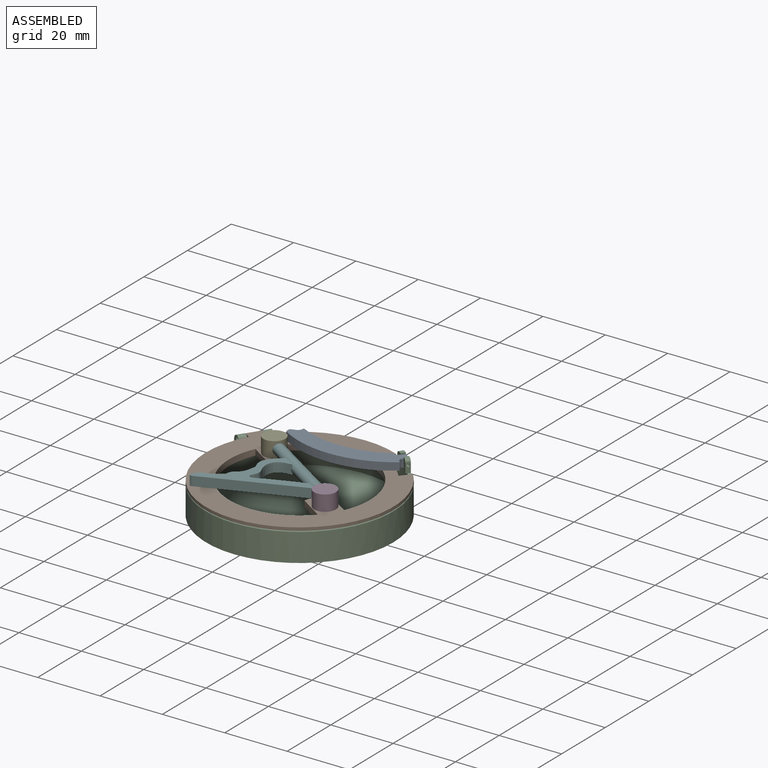
[diagram: assembled view]
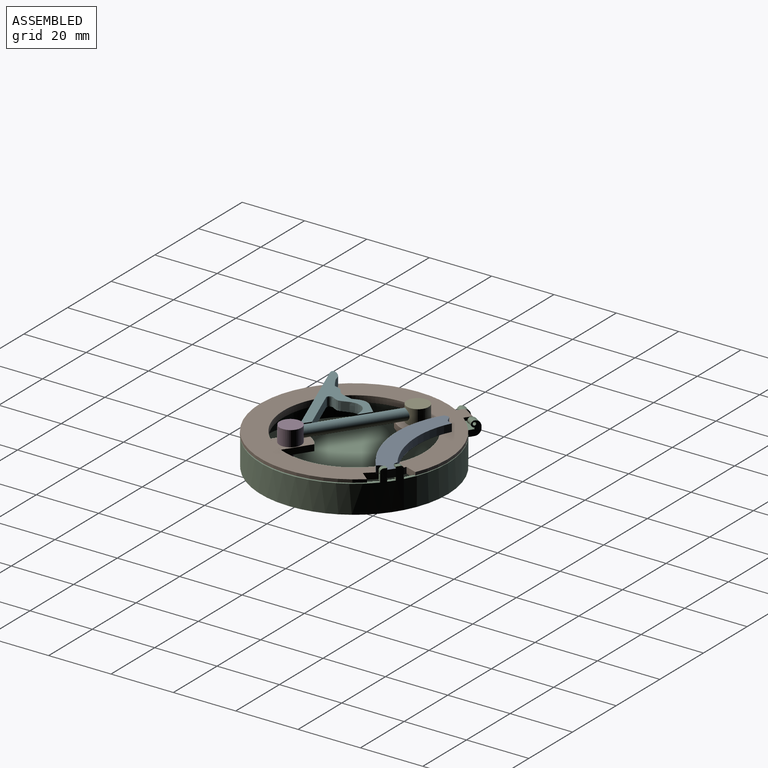
[diagram: assembled view, second angle]
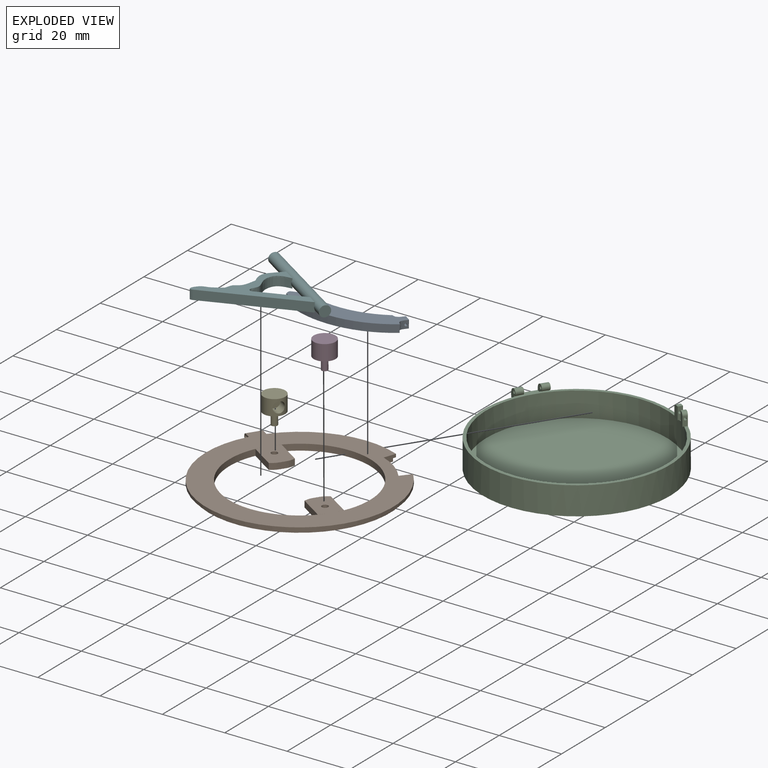
[diagram: exploded view]
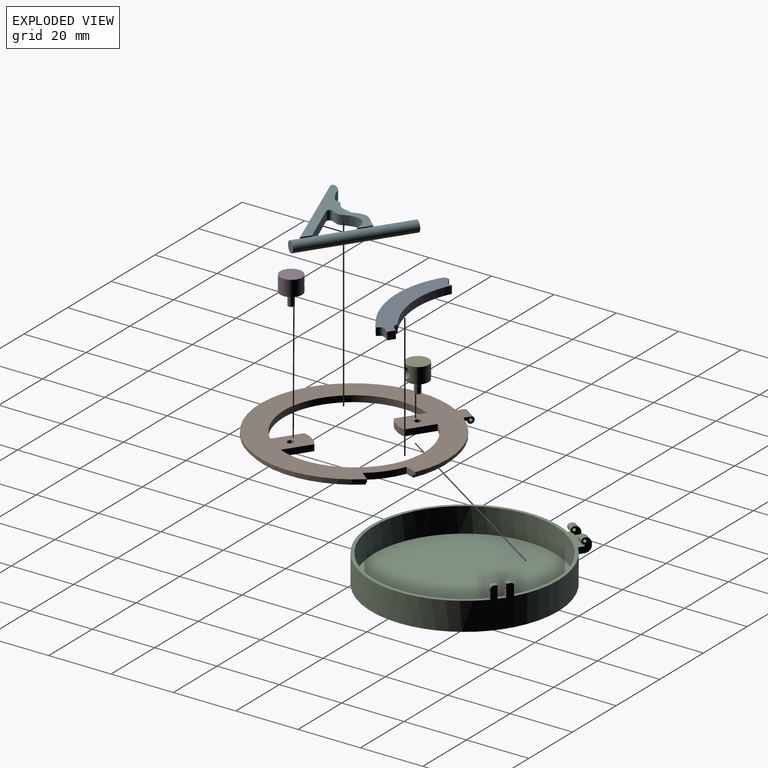
[diagram: exploded view, second angle]
ASSEMBLY  parts=6 mates=5
PART A: 11 faces, bbox 35.3x12.1x2.5 mm
  f0: extruded ~4.39x2.81mm, area 14.7mm2, adj f1,f7,f8,f9
  f1: cylinder r=29.41mm len=34.69mm, axis (0,0,-1), area 93mm2, adj f0,f2,f8,f9
  f2: extruded ~2.61x2.5mm, area 7.5mm2, adj f1,f3,f8,f9
  f3: plane 2.51x1.23mm, normal (0.81,-0.59,0), area 3.3mm2, adj f2,f4,f8,f9,f10
  f4: plane 2.5x1.95mm, normal (0.59,0.81,0), area 6mm2, adj f3,f5,f8,f9
  f5: plane 2.51x1.22mm, normal (-0.81,0.59,0), area 3.2mm2, adj f4,f6,f8,f9,f10
  f6: extruded ~2.5x2.27mm, area 6.4mm2, adj f5,f7,f8,f9
  f7: cylinder r=27.04mm len=27.29mm, axis (0,0,-1), area 71.6mm2, adj f0,f6,f8,f9
  f8: plane 35.26x12.13mm, normal (0,0,1), area 201.1mm2, adj f0,f1,f2,f3,f4,f5,f6,f7
  f9: plane 35.26x12.13mm, normal (0,0,-1), area 201.1mm2, adj f0,f1,f2,f3,f4,f5,f6,f7
  f10: cylinder r=0.4mm len=2.42mm, axis (-0.81,0.58,0), area 6mm2, adj f3,f5
PART B: 29 faces, bbox 60x60x2.1 mm
  f0: plane 2.68x2.1mm, normal (-0.55,-0.84,0), area 4mm2, adj f1,f5,f6,f27,f28
  f1: cylinder r=30mm len=60mm, axis (0,0,-1), area 130.9mm2, adj f0,f5,f6,f25
  f2: cylinder r=29mm len=58mm, axis (0,0,1), area 169mm2, adj f3,f6,f24,f25
  f3: plane 58x58mm, normal (0,0,-1), area 1159.3mm2, adj f2,f7,f8,f9,f10,f11,f12,f13
  f4: cylinder r=30mm len=35.12mm, axis (0,0,-1), area 39mm2, adj f5,f6,f24,f26
  f5: plane 60x60mm, normal (0,0,1), area 1341.4mm2, adj f0,f1,f4,f7,f8,f9,f10,f11
  f6: plane 60x60mm, normal (0,0,-1), area 177.1mm2, adj f0,f1,f2,f4,f24,f25,f26,f28
  f7: cylinder r=22.5mm len=40.55mm, axis (0,0,1), area 136.1mm2, adj f3,f5,f10,f15
  f8: cylinder r=22.5mm len=40.55mm, axis (0,0,1), area 136.1mm2, adj f3,f5,f9,f16
  f9: cylinder r=19.29mm len=2.17mm, axis (0,0,-1), area 4.8mm2, adj f3,f5,f8,f13
  f10: cylinder r=19.29mm len=2mm, axis (0,0,-1), area 4.8mm2, adj f3,f5,f7,f12
  f11: extruded ~3.47x2mm, area 7.6mm2, adj f3,f5,f12,f14
  f12: plane 7.9x5.19mm, normal (0.55,0.84,0), area 18.9mm2, adj f3,f5,f10,f11
  f13: plane 7.9x5.19mm, normal (-0.55,-0.84,0), area 18.9mm2, adj f3,f5,f9,f14
  f14: extruded ~2.71x2.61mm, area 7.6mm2, adj f3,f5,f11,f13
  f15: cylinder r=19.29mm len=2.17mm, axis (0,0,-1), area 4.8mm2, adj f3,f5,f7,f17
  f16: cylinder r=19.29mm len=2mm, axis (0,0,-1), area 4.8mm2, adj f3,f5,f8,f20
  f17: plane 7.9x5.19mm, normal (0.55,0.84,0), area 18.9mm2, adj f3,f5,f15,f18
  f18: extruded ~2.71x2.61mm, area 7.6mm2, adj f3,f5,f17,f19
  f19: extruded ~3.47x2mm, area 7.6mm2, adj f3,f5,f18,f20
  f20: plane 7.9x5.19mm, normal (-0.55,-0.84,0), area 18.9mm2, adj f3,f5,f16,f19
  f21: cylinder r=1mm len=2mm, axis (0,0,1), area 12.6mm2, adj f3,f5
  f22: cylinder r=1mm len=2mm, axis (0,0,1), area 12.6mm2, adj f3,f5
  f23: cylinder r=22.8mm len=9.77mm, axis (0,0,1), area 24.5mm2, adj f3,f5,f24,f25
  f24: plane 3.78x2mm, normal (0.94,-0.33,0), area 7mm2, adj f2,f3,f4,f5,f6,f23
  f25: plane 3.1x2.52mm, normal (-0.78,0.63,0), area 7mm2, adj f1,f2,f3,f5,f6,f23
  f26: plane 2.68x2.1mm, normal (0.55,0.84,0), area 4mm2, adj f4,f5,f6,f27,f28
  f27: cylinder r=0.5mm len=4.73mm, axis (0.55,0.84,0), area 15.7mm2, adj f0,f26
  f28: cylinder r=1.05mm len=5.33mm, axis (0.55,0.84,0), area 25.2mm2, adj f0,f5,f6,f26
PART C: 39 faces, bbox 61.3x60.1x13.1 mm
  f0: plane 2.09x1.37mm, normal (-0.84,0.55,0), area 1.3mm2, adj f28,f30,f33,f36
  f1: plane 2.09x1.37mm, normal (0.84,-0.55,0), area 1.3mm2, adj f2,f25,f27,f35
  f2: cylinder r=1mm len=2.64mm, axis (0.55,0.84,0), area 7.9mm2, adj f1,f3,f25,f35
  f3: cylinder r=2mm len=3.19mm, axis (0.55,0.84,0), area 7.9mm2, adj f2,f25,f31,f35
  f4: cylinder r=0.5mm len=2.64mm, axis (0.55,0.84,0), area 7.9mm2, adj f25,f35
  f5: plane 60.01x60.01mm, normal (0,0,1), area 179.3mm2, adj f6,f8,f12,f21
  f6: cylinder r=30mm len=60mm, axis (0,0,-1), area 1676.4mm2, adj f5,f7,f9,f11,f18,f25,f26,f27
  f7: plane 60x60mm, normal (0,0,-1), area 2827.4mm2, adj f6
  f8: cylinder r=29mm len=58mm, axis (0,0,-1), area 1457.7mm2, adj f5,f9,f10,f16,f17
  f9: plane 2.57x2.25mm, normal (0,0,1), area 2.4mm2, adj f6,f8,f14,f19
  f10: plane 58x58mm, normal (0,0,1), area 2642.1mm2, adj f8
  f11: cylinder r=34.29mm len=4mm, axis (0,0,-1), area 8.6mm2, adj f6,f12,f14,f15,f23
  f12: plane 3.01x1.3mm, normal (-0.86,0.51,0), area 4mm2, adj f5,f11,f13,f16,f23,f38
  f13: plane 4x1.83mm, normal (-0.52,-0.85,0), area 8.3mm2, adj f12,f14,f15,f16,f23
  f14: plane 4x1.22mm, normal (0.81,-0.58,0), area 5.5mm2, adj f9,f11,f13,f15,f16,f38
  f15: plane 1.89x1.85mm, normal (0,0,1), area 1.8mm2, adj f11,f13,f14,f23
  f16: plane 2.12x1.54mm, normal (0,0,-1), area 1.1mm2, adj f8,f12,f13,f14
  f17: plane 1.71x1.58mm, normal (0,0,-1), area 0.9mm2, adj f8,f19,f20,f21
  f18: cylinder r=15.29mm len=4mm, axis (0,0,-1), area 7.3mm2, adj f6,f19,f21,f22,f24
  f19: plane 4x1.22mm, normal (-0.81,0.58,0), area 5.5mm2, adj f9,f17,f18,f20,f22,f37
  f20: plane 4x1.39mm, normal (-0.65,-0.76,0), area 7.1mm2, adj f17,f19,f21,f22,f24
  f21: plane 3.13x1.27mm, normal (0.76,-0.65,0), area 4mm2, adj f5,f17,f18,f20,f24,f37
  f22: plane 1.75x1.61mm, normal (0,0,1), area 1.3mm2, adj f18,f19,f20,f24
  f23: cylinder r=1mm len=1.82mm, axis (0.51,0.86,0), area 2.4mm2, adj f11,f12,f13,f15
  f24: cylinder r=1mm len=1.81mm, axis (-0.65,-0.76,0), area 2.4mm2, adj f18,f20,f21,f22
  f25: plane 4.54x3.69mm, normal (-0.55,-0.84,0), area 13mm2, adj f1,f2,f3,f4,f6,f26,f27,f30
  f26: plane 9.69x7.51mm, normal (0,0,-1), area 21.4mm2, adj f6,f25,f28,f30
  f27: plane 9.69x7.81mm, normal (0,0,1), area 31.4mm2, adj f1,f6,f25,f28,f29,f30,f35,f36
  f28: plane 4.54x3.69mm, normal (0.55,0.84,0), area 13mm2, adj f0,f6,f26,f27,f29,f30,f32,f33
  f29: plane 2.09x1.37mm, normal (0.84,-0.55,0), area 1.3mm2, adj f27,f28,f32,f36
  f30: cylinder r=2mm len=9.46mm, axis (0.55,0.84,0), area 31.4mm2, adj f0,f25,f26,f27,f28,f31
  f31: plane 2.09x1.37mm, normal (-0.84,0.55,0), area 1.3mm2, adj f3,f25,f30,f35
  f32: cylinder r=1mm len=2.64mm, axis (0.55,0.84,0), area 7.9mm2, adj f28,f29,f33,f36
  f33: cylinder r=2mm len=3.19mm, axis (0.55,0.84,0), area 7.9mm2, adj f0,f28,f32,f36
  f34: cylinder r=0.5mm len=2.64mm, axis (0.55,0.84,0), area 7.9mm2, adj f28,f36
  f35: plane 2.54x2.51mm, normal (0.55,0.84,0), area 5mm2, adj f1,f2,f3,f4,f27,f31
  f36: plane 2.54x2.51mm, normal (-0.55,-0.84,0), area 5mm2, adj f0,f27,f29,f32,f33,f34
  f37: cylinder r=0.4mm len=1.97mm, axis (-0.81,0.58,0), area 4.6mm2, adj f19,f21
  f38: cylinder r=0.4mm len=2.28mm, axis (-0.81,0.58,0), area 5.5mm2, adj f12,f14
PART D: 7 faces, bbox 7.4x7x9 mm
  f0: cylinder r=1mm len=4mm, axis (0,0,1), area 25.1mm2, adj f1,f4
  f1: plane 2x2mm, normal (0,0,-1), area 3.1mm2, adj f0
  f2: cylinder r=3.5mm len=7mm, axis (0,0,-1), area 99.9mm2, adj f3,f4,f5
  f3: plane 7x7mm, normal (0,0,1), area 38.5mm2, adj f2
  f4: plane 7x7mm, normal (0,0,-1), area 35.3mm2, adj f0,f2
  f5: cylinder r=1.75mm len=4.85mm, axis (-0.84,0.55,0), area 36mm2, adj f2,f6
  f6: plane 3.5x2.93mm, normal (-0.84,0.55,0), area 9.6mm2, adj f5
PART E: 7 faces, bbox 7.4x7x9 mm
  f0: cylinder r=1mm len=4mm, axis (0,0,1), area 25.1mm2, adj f1,f4
  f1: plane 2x2mm, normal (0,0,-1), area 3.1mm2, adj f0
  f2: cylinder r=3.5mm len=7mm, axis (0,0,-1), area 100mm2, adj f3,f4,f5
  f3: plane 7x7mm, normal (0,0,1), area 38.5mm2, adj f2
  f4: plane 7x7mm, normal (0,0,-1), area 35.3mm2, adj f0,f2
  f5: cylinder r=1.75mm len=4.85mm, axis (0.84,-0.55,0), area 36mm2, adj f2,f6
  f6: plane 3.5x2.93mm, normal (0.84,-0.55,0), area 9.6mm2, adj f5
PART F: 15 faces, bbox 36.6x32.8x3.5 mm
  f0: plane 3.5x2.93mm, normal (0.84,-0.55,0), area 9.6mm2, adj f2
  f1: plane 3.5x2.93mm, normal (-0.84,0.55,0), area 9.6mm2, adj f2
  f2: cylinder r=1.75mm len=32.01mm, axis (-0.84,0.55,0), area 381.9mm2, adj f0,f1,f3,f4,f5,f6,f7,f8
  f3: extruded ~12.78x5.52mm, area 54.6mm2, adj f2,f4,f7,f8,f13,f14
  f4: plane 3.8x2.52mm, normal (0.55,0.83,0), area 2.6mm2, adj f2,f3,f5,f13
  f5: extruded ~9.22x4.24mm, area 32.3mm2, adj f2,f4,f8,f9,f13,f14
  f6: plane 2.85x1.9mm, normal (0.56,0.83,0), area 2.5mm2, adj f2,f7,f11,f13
  f7: plane 13.95x5.45mm, normal (-0.36,0.93,0), area 44.7mm2, adj f2,f3,f6,f12,f13,f14
  f8: plane 3.8x2.52mm, normal (0.55,0.83,0), area 2.6mm2, adj f2,f3,f5,f14
  f9: extruded ~8.2x3.95mm, area 28.4mm2, adj f5,f10,f13,f14
  f10: extruded ~7.4x6.01mm, area 33mm2, adj f9,f11,f13,f14
  f11: plane 30.88x11.93mm, normal (0.36,-0.93,0), area 99.1mm2, adj f2,f6,f10,f12,f13,f14
  f12: plane 2.85x1.9mm, normal (0.56,0.83,0), area 2.5mm2, adj f2,f7,f11,f14
  f13: plane 32.04x23.51mm, normal (0,0,1), area 144.4mm2, adj f3,f4,f5,f6,f7,f9,f10,f11
  f14: plane 32.04x23.51mm, normal (0,0,-1), area 144.4mm2, adj f3,f5,f7,f8,f9,f10,f11,f12
PLACE A rot(axis=(-0.79,0.57,0.21),1.7deg) t=(-0.03,-0.36,0.83)mm
PLACE B rot(axis=(-0.55,-0.84,0),0.2deg) t=(0.07,-0.05,0.22)mm
PLACE C at identity fixed
PLACE D rot(axis=(-0.55,-0.84,0),0.2deg) t=(0.08,-0.05,0.22)mm
PLACE E rot(axis=(-0.55,-0.84,0),0.2deg) t=(0.07,-0.05,0.22)mm
PLACE F rot(axis=(-0.77,-0.64,0),0.3deg) t=(0.06,-0.06,0.22)mm
MATE revolute E.f5 <-> F.f2  axis (0.84,-0.55,0) through (-15.02,9.87,12.64)mm
MATE revolute B.f28 <-> C.f2  axis (0.55,0.84,0) through (-25.37,19.66,9.04)mm
MATE revolute A.f3 <-> C.f37  axis (0.81,-0.58,0) through (18.06,22.89,11.15)mm
MATE fastened B.f21 <-> E.f0  axis (0,0,1) through (-15.01,9.86,10.14)mm
MATE fastened D.f0 <-> B.f22  axis (0,0,-1) through (15.09,-9.91,10.3)mm
